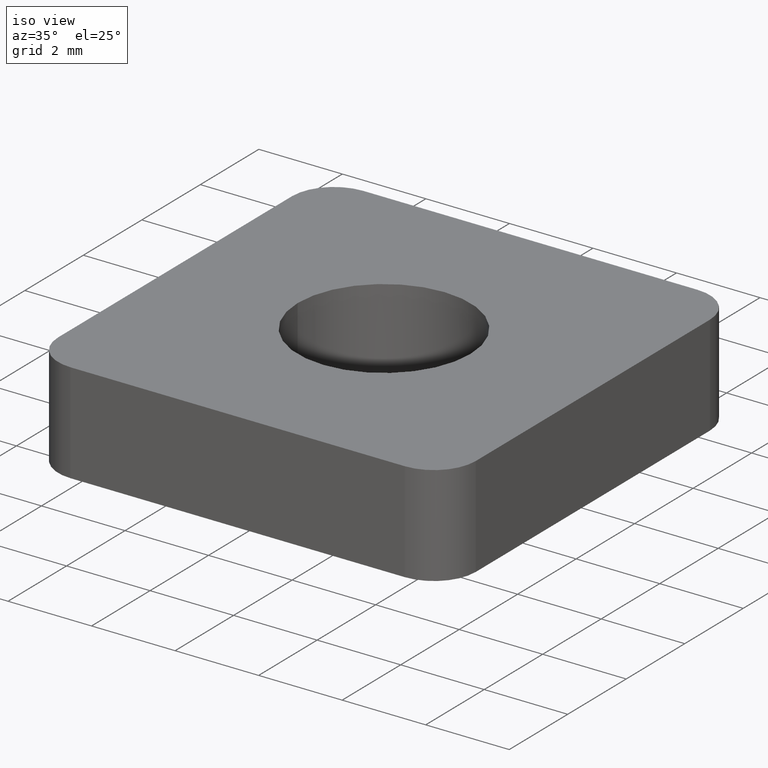
[diagram: clean part render]
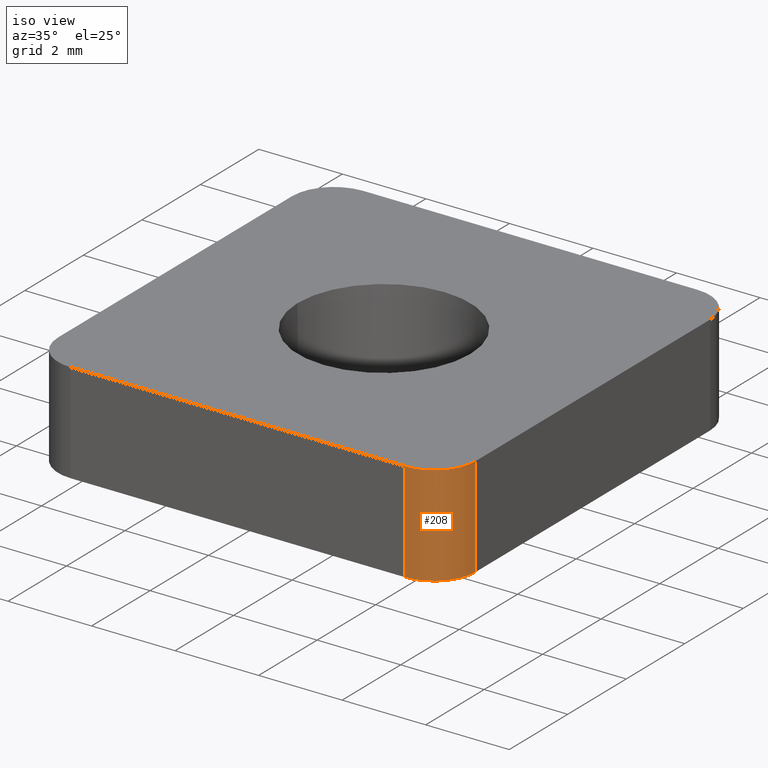
[diagram: same view with one face highlighted and labeled with its STEP entity id]
A machine part, iso view. The second image highlights one B-rep face of the part: STEP entity #208.
In plain terms, the highlighted cylindrical surface (partial cylindrical patch) has radius 1 mm, axis along (0, 0, 1).
Its self-contained STEP definition (entity closure, byte-faithful):
#31=FACE_OUTER_BOUND('',#43,.T.);
#43=EDGE_LOOP('',(#177,#178,#179,#180));
#51=LINE('',#338,#68);
#61=LINE('',#368,#78);
#68=VECTOR('',#275,2.4);
#78=VECTOR('',#305,2.4);
#88=CIRCLE('',#242,1.);
#91=CIRCLE('',#250,1.);
#99=VERTEX_POINT('',#335);
#100=VERTEX_POINT('',#337);
#105=VERTEX_POINT('',#349);
#110=VERTEX_POINT('',#367);
#120=EDGE_CURVE('',#100,#99,#51,.T.);
#127=EDGE_CURVE('',#99,#105,#88,.T.);
#135=EDGE_CURVE('',#110,#105,#61,.T.);
#137=EDGE_CURVE('',#100,#110,#91,.T.);
#177=ORIENTED_EDGE('',*,*,#120,.T.);
#178=ORIENTED_EDGE('',*,*,#127,.T.);
#179=ORIENTED_EDGE('',*,*,#135,.F.);
#180=ORIENTED_EDGE('',*,*,#137,.F.);
#199=CYLINDRICAL_SURFACE('',#249,1.);
#208=ADVANCED_FACE('',(#31),#199,.T.);
#242=AXIS2_PLACEMENT_3D('',#351,#286,#287);
#249=AXIS2_PLACEMENT_3D('',#370,#307,#308);
#250=AXIS2_PLACEMENT_3D('',#371,#309,#310);
#275=DIRECTION('',(0.,0.,-1.));
#286=DIRECTION('center_axis',(0.,0.,1.));
#287=DIRECTION('ref_axis',(1.,0.,0.));
#305=DIRECTION('',(0.,0.,-1.));
#307=DIRECTION('center_axis',(0.,0.,1.));
#308=DIRECTION('ref_axis',(0.,-1.,0.));
#309=DIRECTION('center_axis',(0.,0.,1.));
#310=DIRECTION('ref_axis',(1.,0.,0.));
#335=CARTESIAN_POINT('',(4.,-4.99999999999988,-2.4));
#337=CARTESIAN_POINT('',(4.,-4.99999999999988,0.));
#338=CARTESIAN_POINT('',(4.,-4.99999999999988,0.));
#349=CARTESIAN_POINT('',(5.,-3.99999999999989,-2.4));
#351=CARTESIAN_POINT('Origin',(4.,-3.99999999999989,-2.4));
#367=CARTESIAN_POINT('',(5.,-3.99999999999989,0.));
#368=CARTESIAN_POINT('',(5.,-3.99999999999989,0.));
#370=CARTESIAN_POINT('Origin',(4.,-3.99999999999989,0.));
#371=CARTESIAN_POINT('Origin',(4.,-3.99999999999989,0.));